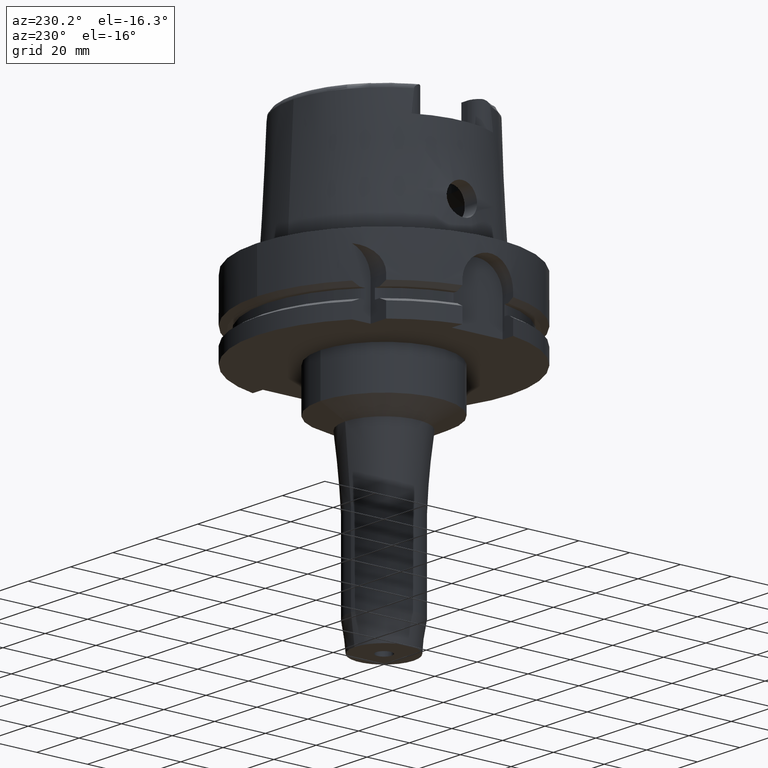
[diagram: clean part render]
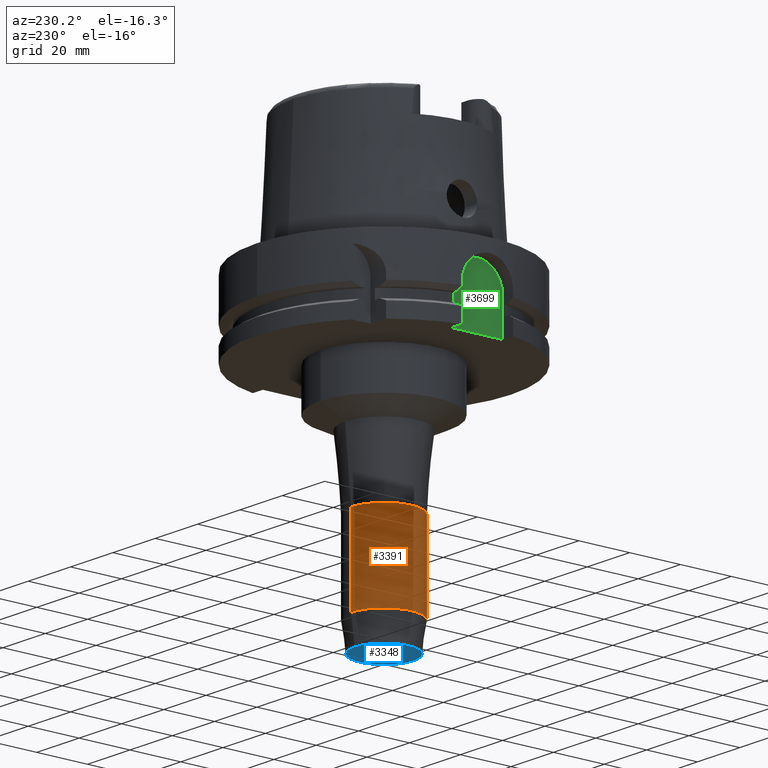
[diagram: same view with three faces highlighted in distinct colors, each labeled with its STEP entity id]
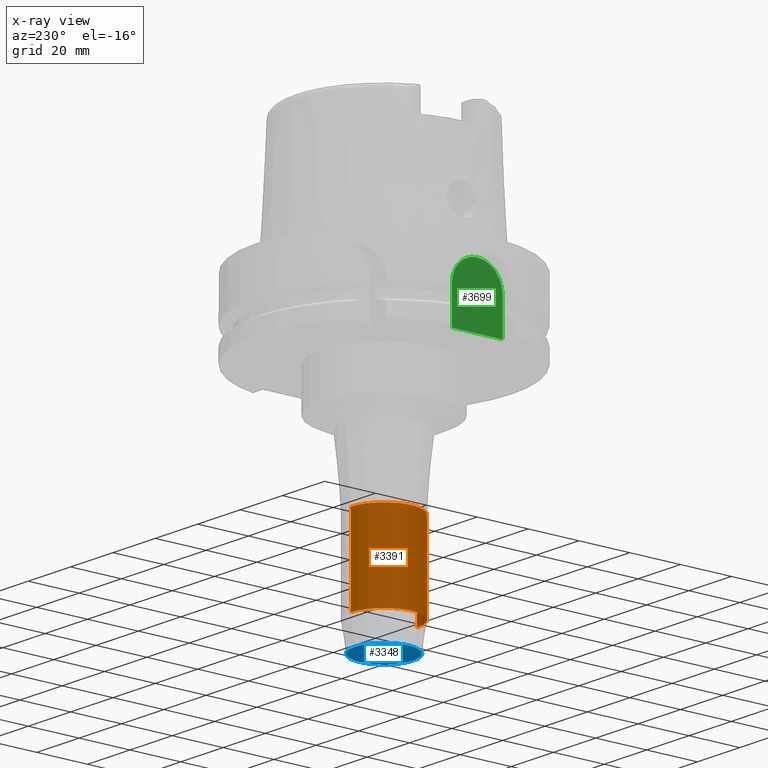
[diagram: x-ray of the same camera — body ghosted, the three highlighted faces saturated]
A machine part, auxiliary view with three faces highlighted in distinct colors.
The next image is the same camera in x-ray (body ghosted, the three faces saturated) — at least one of them is partly hidden behind the body in this view.
Their STEP definitions:

[orange] entity #3391 — the highlighted cylindrical surface (partial cylindrical patch) has radius 13 mm, axis along (0, 0, 1).
#1110=CARTESIAN_POINT('',(0.E0,0.E0,-1.093355612257E2));
#1111=DIRECTION('',(0.E0,0.E0,1.E0));
#1112=DIRECTION('',(0.E0,1.E0,0.E0));
#1113=AXIS2_PLACEMENT_3D('',#1110,#1111,#1112);
#1125=DIRECTION('',(0.E0,-8.927581131972E-14,-1.E0));
#1126=VECTOR('',#1125,3.324856122570E1);
#1127=CARTESIAN_POINT('',(0.E0,-1.3E1,-7.6087E1));
#1128=LINE('',#1127,#1126);
#1132=DIRECTION('',(0.E0,8.927581131972E-14,-1.E0));
#1133=VECTOR('',#1132,3.324856122570E1);
#1134=CARTESIAN_POINT('',(0.E0,1.3E1,-7.6087E1));
#1135=LINE('',#1134,#1133);
#1169=CARTESIAN_POINT('',(0.E0,0.E0,-7.6087E1));
#1170=DIRECTION('',(0.E0,0.E0,-1.E0));
#1171=DIRECTION('',(0.E0,-1.E0,0.E0));
#1172=AXIS2_PLACEMENT_3D('',#1169,#1170,#1171);
#2414=CARTESIAN_POINT('',(0.E0,1.3E1,-1.093355612257E2));
#2415=VERTEX_POINT('',#2414);
#2416=CARTESIAN_POINT('',(0.E0,-1.3E1,-1.093355612257E2));
#2417=VERTEX_POINT('',#2416);
#2418=CARTESIAN_POINT('',(0.E0,1.3E1,-7.6087E1));
#2419=VERTEX_POINT('',#2418);
#2420=CARTESIAN_POINT('',(0.E0,-1.3E1,-7.6087E1));
#2421=VERTEX_POINT('',#2420);
#3377=CARTESIAN_POINT('',(0.E0,0.E0,-1.285E2));
#3378=DIRECTION('',(0.E0,0.E0,1.E0));
#3379=DIRECTION('',(0.E0,1.E0,0.E0));
#3380=AXIS2_PLACEMENT_3D('',#3377,#3378,#3379);
#3381=CYLINDRICAL_SURFACE('',#3380,1.3E1);
#3383=ORIENTED_EDGE('',*,*,#3382,.F.);
#3385=ORIENTED_EDGE('',*,*,#3384,.F.);
#3387=ORIENTED_EDGE('',*,*,#3386,.T.);
#3388=ORIENTED_EDGE('',*,*,#3370,.F.);
#3389=EDGE_LOOP('',(#3383,#3385,#3387,#3388));
#3390=FACE_OUTER_BOUND('',#3389,.F.);
#1114=CIRCLE('',#1113,1.300000000001E1);
#1173=CIRCLE('',#1172,1.3E1);
#3370=EDGE_CURVE('',#2415,#2417,#1114,.T.);
#3382=EDGE_CURVE('',#2419,#2415,#1135,.T.);
#3384=EDGE_CURVE('',#2421,#2419,#1173,.T.);
#3386=EDGE_CURVE('',#2421,#2417,#1128,.T.);
#3391=ADVANCED_FACE('',(#3390),#3381,.T.);

[blue] entity #3348 — the highlighted planar face has unit normal (0, 0, 1).
#1063=CARTESIAN_POINT('',(0.E0,0.E0,-1.2E2));
#1064=DIRECTION('',(0.E0,0.E0,1.E0));
#1065=DIRECTION('',(0.E0,-1.E0,0.E0));
#1066=AXIS2_PLACEMENT_3D('',#1063,#1064,#1065);
#1071=CARTESIAN_POINT('',(0.E0,0.E0,-1.2E2));
#1072=DIRECTION('',(0.E0,0.E0,1.E0));
#1073=DIRECTION('',(0.E0,1.E0,0.E0));
#1074=AXIS2_PLACEMENT_3D('',#1071,#1072,#1073);
#1079=CARTESIAN_POINT('',(0.E0,0.E0,-1.2E2));
#1080=DIRECTION('',(0.E0,0.E0,-1.E0));
#1081=DIRECTION('',(0.E0,-1.E0,0.E0));
#1082=AXIS2_PLACEMENT_3D('',#1079,#1080,#1081);
#1087=CARTESIAN_POINT('',(0.E0,0.E0,-1.2E2));
#1088=DIRECTION('',(0.E0,0.E0,-1.E0));
#1089=DIRECTION('',(0.E0,1.E0,0.E0));
#1090=AXIS2_PLACEMENT_3D('',#1087,#1088,#1089);
#2406=CARTESIAN_POINT('',(0.E0,3.E0,-1.2E2));
#2407=VERTEX_POINT('',#2406);
#2408=CARTESIAN_POINT('',(0.E0,-3.E0,-1.2E2));
#2409=VERTEX_POINT('',#2408);
#2410=CARTESIAN_POINT('',(0.E0,-1.1596E1,-1.2E2));
#2411=CARTESIAN_POINT('',(0.E0,1.1596E1,-1.2E2));
#2412=VERTEX_POINT('',#2410);
#2413=VERTEX_POINT('',#2411);
#3333=CARTESIAN_POINT('',(0.E0,0.E0,-1.2E2));
#3334=DIRECTION('',(0.E0,0.E0,1.E0));
#3335=DIRECTION('',(0.E0,1.E0,0.E0));
#3336=AXIS2_PLACEMENT_3D('',#3333,#3334,#3335);
#3337=PLANE('',#3336);
#3339=ORIENTED_EDGE('',*,*,#3338,.T.);
#3341=ORIENTED_EDGE('',*,*,#3340,.T.);
#3342=EDGE_LOOP('',(#3339,#3341));
#3343=FACE_OUTER_BOUND('',#3342,.F.);
#3344=ORIENTED_EDGE('',*,*,#3326,.T.);
#3345=ORIENTED_EDGE('',*,*,#3315,.T.);
#3346=EDGE_LOOP('',(#3344,#3345));
#3347=FACE_BOUND('',#3346,.F.);
#1067=CIRCLE('',#1066,1.1596E1);
#1075=CIRCLE('',#1074,1.1596E1);
#1083=CIRCLE('',#1082,3.E0);
#1091=CIRCLE('',#1090,3.E0);
#3315=EDGE_CURVE('',#2407,#2409,#1091,.T.);
#3326=EDGE_CURVE('',#2409,#2407,#1083,.T.);
#3338=EDGE_CURVE('',#2412,#2413,#1067,.T.);
#3340=EDGE_CURVE('',#2413,#2412,#1075,.T.);
#3348=ADVANCED_FACE('',(#3343,#3347),#3337,.F.);

[green] entity #3699 — the highlighted planar face has unit normal (1, 0, 0).
#1431=DIRECTION('',(0.E0,0.E0,1.E0));
#1432=VECTOR('',#1431,1.4E1);
#1433=CARTESIAN_POINT('',(-4.4E1,-1.E1,-2.9E1));
#1434=LINE('',#1433,#1432);
#1445=DIRECTION('',(0.E0,1.E0,0.E0));
#1446=VECTOR('',#1445,2.E1);
#1447=CARTESIAN_POINT('',(-4.4E1,-1.E1,-2.9E1));
#1448=LINE('',#1447,#1446);
#1452=CARTESIAN_POINT('',(-4.4E1,0.E0,-1.5E1));
#1453=DIRECTION('',(1.E0,0.E0,0.E0));
#1454=DIRECTION('',(0.E0,1.E0,0.E0));
#1455=AXIS2_PLACEMENT_3D('',#1452,#1453,#1454);
#1460=CARTESIAN_POINT('',(-4.4E1,0.E0,-1.5E1));
#1461=DIRECTION('',(1.E0,0.E0,0.E0));
#1462=DIRECTION('',(0.E0,0.E0,1.E0));
#1463=AXIS2_PLACEMENT_3D('',#1460,#1461,#1462);
#1482=DIRECTION('',(0.E0,0.E0,-1.E0));
#1483=VECTOR('',#1482,1.4E1);
#1484=CARTESIAN_POINT('',(-4.4E1,1.E1,-1.5E1));
#1485=LINE('',#1484,#1483);
#2442=CARTESIAN_POINT('',(-4.4E1,1.E1,-2.9E1));
#2443=VERTEX_POINT('',#2442);
#2444=CARTESIAN_POINT('',(-4.4E1,-1.E1,-2.9E1));
#2445=VERTEX_POINT('',#2444);
#2488=CARTESIAN_POINT('',(-4.4E1,-1.E1,-1.5E1));
#2489=VERTEX_POINT('',#2488);
#2501=CARTESIAN_POINT('',(-4.4E1,1.E1,-1.5E1));
#2502=VERTEX_POINT('',#2501);
#2503=CARTESIAN_POINT('',(-4.4E1,0.E0,-5.E0));
#2504=VERTEX_POINT('',#2503);
#3684=CARTESIAN_POINT('',(-4.4E1,0.E0,0.E0));
#3685=DIRECTION('',(1.E0,0.E0,0.E0));
#3686=DIRECTION('',(0.E0,0.E0,1.E0));
#3687=AXIS2_PLACEMENT_3D('',#3684,#3685,#3686);
#3688=PLANE('',#3687);
#3689=ORIENTED_EDGE('',*,*,#3502,.T.);
#3691=ORIENTED_EDGE('',*,*,#3690,.F.);
#3693=ORIENTED_EDGE('',*,*,#3692,.T.);
#3695=ORIENTED_EDGE('',*,*,#3694,.T.);
#3696=ORIENTED_EDGE('',*,*,#3664,.F.);
#3697=EDGE_LOOP('',(#3689,#3691,#3693,#3695,#3696));
#3698=FACE_OUTER_BOUND('',#3697,.F.);
#1456=CIRCLE('',#1455,1.E1);
#1464=CIRCLE('',#1463,1.E1);
#3502=EDGE_CURVE('',#2445,#2443,#1448,.T.);
#3664=EDGE_CURVE('',#2445,#2489,#1434,.T.);
#3690=EDGE_CURVE('',#2502,#2443,#1485,.T.);
#3692=EDGE_CURVE('',#2502,#2504,#1456,.T.);
#3694=EDGE_CURVE('',#2504,#2489,#1464,.T.);
#3699=ADVANCED_FACE('',(#3698),#3688,.F.);